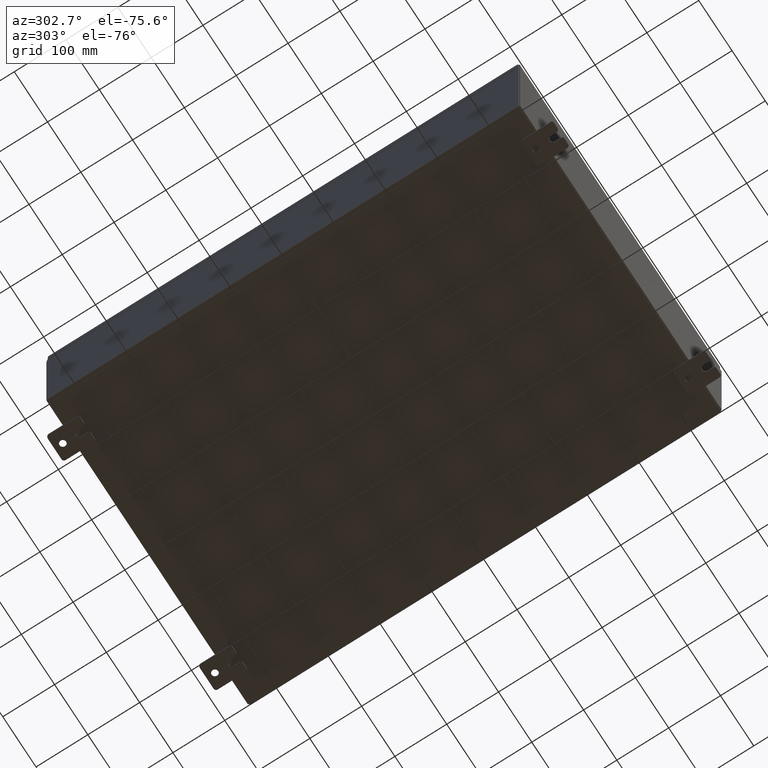
[diagram: clean part render]
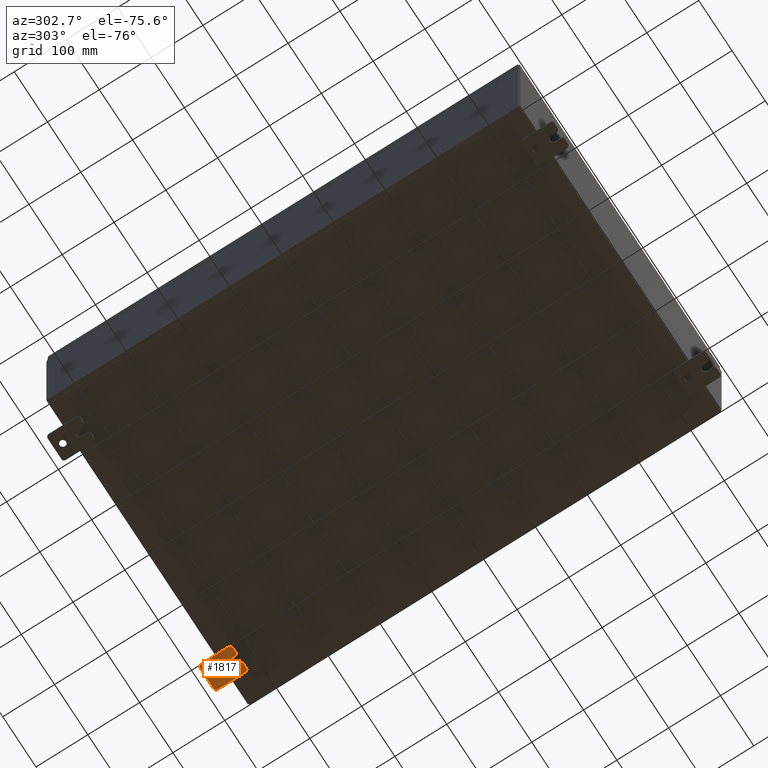
[diagram: same view with one face highlighted and labeled with its STEP entity id]
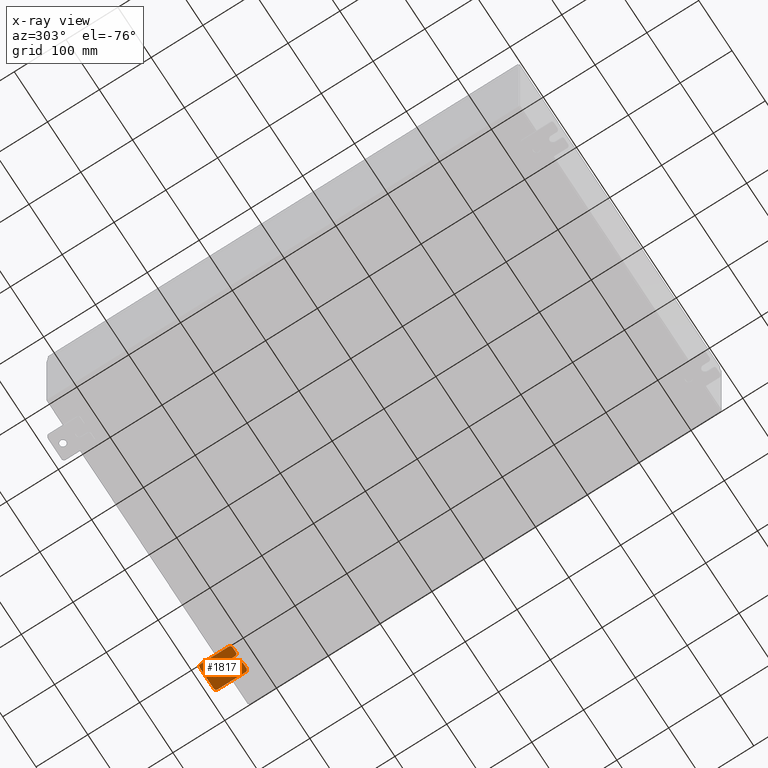
[diagram: x-ray of the same camera — body ghosted, the highlighted face saturated]
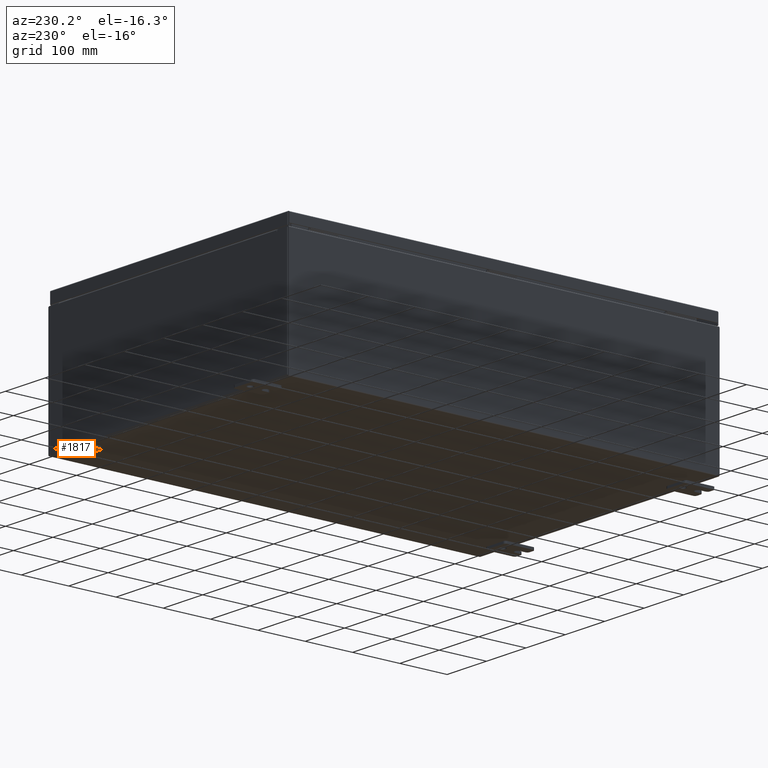
[diagram: same view with one face highlighted and labeled with its STEP entity id]
A machine part, auxiliary view. The second image highlights one B-rep face of the part: STEP entity #1817.
The next image is the same camera in x-ray: the body ghosted, the highlighted face saturated — about 0% of this face is hidden behind the body in this view.
A second angle (auxiliary view) of the same face is appended — the face is thin or edge-on in the first view.
In plain terms, the highlighted planar face has unit normal (0, 0, 1).
Its self-contained STEP definition (entity closure, byte-faithful):
#1572 = AXIS2_PLACEMENT_3D ( 'NONE', #21682, #56343, #26669 ) ;
#1817 = ADVANCED_FACE ( 'NONE', ( #14150, #24197 ), #57454, .F. ) ;
#2554 = DIRECTION ( 'NONE',  ( 0.0000000000000000000, 0.0000000000000000000, -1.000000000000000000 ) ) ;
#2759 = ORIENTED_EDGE ( 'NONE', *, *, #17984, .F. ) ;
#2913 = ORIENTED_EDGE ( 'NONE', *, *, #22399, .T. ) ;
#3124 = VERTEX_POINT ( 'NONE', #59370 ) ;
#3532 = EDGE_CURVE ( 'NONE', #18053, #22942, #44968, .T. ) ;
#3569 = AXIS2_PLACEMENT_3D ( 'NONE', #50252, #20573, #55243 ) ;
#4762 = CARTESIAN_POINT ( 'NONE',  ( -0.1879999999999997800, 0.0000000000000000000, 0.0000000000000000000 ) ) ;
#5684 = CARTESIAN_POINT ( 'NONE',  ( -0.1879999999999997800, -1.250000000000004700, -0.4400000000000002200 ) ) ;
#5997 = CARTESIAN_POINT ( 'NONE',  ( -0.1879999999999997800, 1.059999999999993400, -1.000000000000010000 ) ) ;
#6050 = CARTESIAN_POINT ( 'NONE',  ( -0.1880000000000001900, -0.6249999999999992200, -0.2499999999999993900 ) ) ;
#6592 = VECTOR ( 'NONE', #51560, 39.37007874015748100 ) ;
#7234 = EDGE_CURVE ( 'NONE', #51259, #7924, #46365, .T. ) ;
#7886 = VECTOR ( 'NONE', #20965, 39.37007874015748100 ) ;
#7924 = VERTEX_POINT ( 'NONE', #5997 ) ;
#9642 = VERTEX_POINT ( 'NONE', #15227 ) ;
#9829 = EDGE_CURVE ( 'NONE', #34634, #3124, #25261, .T. ) ;
#9855 = ORIENTED_EDGE ( 'NONE', *, *, #9829, .F. ) ;
#10464 = EDGE_CURVE ( 'NONE', #16222, #9642, #29805, .T. ) ;
#11246 = EDGE_CURVE ( 'NONE', #62405, #61473, #25928, .T. ) ;
#12113 = CARTESIAN_POINT ( 'NONE',  ( -0.1879999999999997800, 1.059999999999993600, -0.8100000000000089400 ) ) ;
#12541 = CARTESIAN_POINT ( 'NONE',  ( -0.1879999999999997800, 1.249999999999994700, -0.8100000000000092700 ) ) ;
#13964 = DIRECTION ( 'NONE',  ( 0.0000000000000000000, 1.639108796198553600E-015, 1.000000000000000000 ) ) ;
#14150 = FACE_BOUND ( 'NONE', #57389, .T. ) ;
#14245 = CARTESIAN_POINT ( 'NONE',  ( -0.1880000000000010000, 0.6249999999999992200, 0.2499999999999999200 ) ) ;
#15227 = CARTESIAN_POINT ( 'NONE',  ( -0.1879999999999997800, -1.060000000000001200, 0.9999999999999988900 ) ) ;
#15603 = ORIENTED_EDGE ( 'NONE', *, *, #40938, .T. ) ;
#15990 = CARTESIAN_POINT ( 'NONE',  ( -0.1879999999999997800, -1.250000000000002200, 0.9999999999999992200 ) ) ;
#16222 = VERTEX_POINT ( 'NONE', #49910 ) ;
#17081 = DIRECTION ( 'NONE',  ( 0.0000000000000000000, 0.0000000000000000000, -1.000000000000000000 ) ) ;
#17331 = CARTESIAN_POINT ( 'NONE',  ( -0.1879999999999997800, -1.060000000000002100, 0.4400000000000016700 ) ) ;
#17494 = CARTESIAN_POINT ( 'NONE',  ( -0.1879999999999997800, 1.249999999999997300, 0.8099999999999935000 ) ) ;
#17612 = VERTEX_POINT ( 'NONE', #47077 ) ;
#17839 = CARTESIAN_POINT ( 'NONE',  ( -0.1879999999999997800, -1.060000000000001600, 0.8099999999999978300 ) ) ;
#17984 = EDGE_CURVE ( 'NONE', #17612, #9642, #39863, .T. ) ;
#18030 = ORIENTED_EDGE ( 'NONE', *, *, #35286, .T. ) ;
#18053 = VERTEX_POINT ( 'NONE', #5684 ) ;
#18512 = LINE ( 'NONE', #6050, #33221 ) ;
#18625 = ORIENTED_EDGE ( 'NONE', *, *, #29932, .F. ) ;
#18661 = CIRCLE ( 'NONE', #32580, 0.2499999999999999200 ) ;
#18856 = EDGE_CURVE ( 'NONE', #51259, #22942, #56069, .T. ) ;
#18902 = CARTESIAN_POINT ( 'NONE',  ( -0.1880000000000010000, 0.6249999999999992200, -7.703811342100550500E-020 ) ) ;
#18917 = CARTESIAN_POINT ( 'NONE',  ( -0.1879999999999997800, -1.250000000000005600, -1.000000000000006200 ) ) ;
#19925 = CARTESIAN_POINT ( 'NONE',  ( -0.1879999999999997800, -1.250000000000002200, 0.9999999999999992200 ) ) ;
#20189 = AXIS2_PLACEMENT_3D ( 'NONE', #27084, #61853, #32061 ) ;
#20573 = DIRECTION ( 'NONE',  ( -1.000000000000000000, -0.0000000000000000000, 0.0000000000000000000 ) ) ;
#20637 = DIRECTION ( 'NONE',  ( 0.0000000000000000000, -1.639108796198553600E-015, -1.000000000000000000 ) ) ;
#20928 = CARTESIAN_POINT ( 'NONE',  ( -0.1880000000000010000, 0.6249999999999992200, -0.2499999999999999200 ) ) ;
#20965 = DIRECTION ( 'NONE',  ( 0.0000000000000000000, -1.639108796198553600E-015, -1.000000000000000000 ) ) ;
#21682 = CARTESIAN_POINT ( 'NONE',  ( -0.1880000000000001900, -0.6249999999999992200, 6.829619984160658000E-017 ) ) ;
#21899 = CARTESIAN_POINT ( 'NONE',  ( -0.1880000000000004700, -1.060000000000003400, -0.2499999999999994400 ) ) ;
#22249 = EDGE_CURVE ( 'NONE', #17612, #49250, #61392, .T. ) ;
#22326 = DIRECTION ( 'NONE',  ( 0.0000000000000000000, 0.0000000000000000000, -1.000000000000000000 ) ) ;
#22375 = CARTESIAN_POINT ( 'NONE',  ( -0.1880000000000001900, -0.6249999999999992200, 0.2500000000000005000 ) ) ;
#22399 = EDGE_CURVE ( 'NONE', #53849, #49183, #18661, .T. ) ;
#22468 = CIRCLE ( 'NONE', #29522, 0.2499999999999999200 ) ;
#22834 = DIRECTION ( 'NONE',  ( 0.0000000000000000000, 7.189073667537492800E-016, -1.000000000000000000 ) ) ;
#22942 = VERTEX_POINT ( 'NONE', #61096 ) ;
#23883 = DIRECTION ( 'NONE',  ( 0.0000000000000000000, 0.0000000000000000000, -1.000000000000000000 ) ) ;
#24197 = FACE_OUTER_BOUND ( 'NONE', #58831, .T. ) ;
#25261 = CIRCLE ( 'NONE', #1572, 0.2499999999999999200 ) ;
#25487 = CIRCLE ( 'NONE', #46612, 0.1900000000000011100 ) ;
#25928 = CIRCLE ( 'NONE', #51093, 0.1900000000000011400 ) ;
#26664 = CARTESIAN_POINT ( 'NONE',  ( -0.1879999999999997800, -1.060000000000004500, -1.000000000000006400 ) ) ;
#26669 = DIRECTION ( 'NONE',  ( -6.829619984160660000E-016, -1.000000000000000000, 0.0000000000000000000 ) ) ;
#27084 = CARTESIAN_POINT ( 'NONE',  ( -0.1879999999999997800, -1.060000000000004100, -0.8100000000000050500 ) ) ;
#28321 = DIRECTION ( 'NONE',  ( 1.000000000000000000, -0.0000000000000000000, -5.163192708025532000E-017 ) ) ;
#29085 = AXIS2_PLACEMENT_3D ( 'NONE', #17839, #52477, #22834 ) ;
#29522 = AXIS2_PLACEMENT_3D ( 'NONE', #18902, #53544, #23883 ) ;
#29805 = CIRCLE ( 'NONE', #29085, 0.1900000000000011100 ) ;
#29932 = EDGE_CURVE ( 'NONE', #16222, #61473, #34294, .T. ) ;
#30058 = VECTOR ( 'NONE', #51602, 39.37007874015748100 ) ;
#31768 = VECTOR ( 'NONE', #20637, 39.37007874015748100 ) ;
#32061 = DIRECTION ( 'NONE',  ( 0.0000000000000000000, 0.0000000000000000000, -1.000000000000000000 ) ) ;
#32326 = DIRECTION ( 'NONE',  ( -1.000000000000000000, -0.0000000000000000000, 0.0000000000000000000 ) ) ;
#32553 = DIRECTION ( 'NONE',  ( -0.0000000000000000000, 0.0000000000000000000, -1.000000000000000000 ) ) ;
#32580 = AXIS2_PLACEMENT_3D ( 'NONE', #58031, #28321, #63142 ) ;
#32990 = LINE ( 'NONE', #61658, #6592 ) ;
#33221 = VECTOR ( 'NONE', #45733, 39.37007874015748100 ) ;
#33322 = EDGE_CURVE ( 'NONE', #49183, #53849, #22468, .T. ) ;
#33854 = CARTESIAN_POINT ( 'NONE',  ( -0.1879999999999997800, 1.249999999999994200, -1.000000000000010400 ) ) ;
#34294 = LINE ( 'NONE', #15990, #7886 ) ;
#34634 = VERTEX_POINT ( 'NONE', #22375 ) ;
#34814 = ORIENTED_EDGE ( 'NONE', *, *, #55019, .F. ) ;
#35061 = EDGE_CURVE ( 'NONE', #3124, #48764, #18512, .T. ) ;
#35286 = EDGE_CURVE ( 'NONE', #56455, #7924, #25487, .T. ) ;
#35896 = ORIENTED_EDGE ( 'NONE', *, *, #7234, .F. ) ;
#36080 = DIRECTION ( 'NONE',  ( 1.000000000000000000, 0.0000000000000000000, -0.0000000000000000000 ) ) ;
#36551 = LINE ( 'NONE', #33854, #51258 ) ;
#37672 = ORIENTED_EDGE ( 'NONE', *, *, #10464, .T. ) ;
#39863 = LINE ( 'NONE', #44713, #51437 ) ;
#40938 = EDGE_CURVE ( 'NONE', #18053, #48764, #62453, .T. ) ;
#43249 = ORIENTED_EDGE ( 'NONE', *, *, #62213, .F. ) ;
#44713 = CARTESIAN_POINT ( 'NONE',  ( -0.1879999999999997800, 1.249999999999997600, 0.9999999999999951200 ) ) ;
#44968 = LINE ( 'NONE', #19925, #31768 ) ;
#45733 = DIRECTION ( 'NONE',  ( -6.556435184794182400E-016, -1.000000000000000000, -1.639108796198545600E-016 ) ) ;
#46365 = LINE ( 'NONE', #18917, #30058 ) ;
#46387 = ORIENTED_EDGE ( 'NONE', *, *, #11246, .T. ) ;
#46612 = AXIS2_PLACEMENT_3D ( 'NONE', #12113, #46779, #17081 ) ;
#46779 = DIRECTION ( 'NONE',  ( -1.000000000000000000, -0.0000000000000000000, 0.0000000000000000000 ) ) ;
#47077 = CARTESIAN_POINT ( 'NONE',  ( -0.1879999999999997800, 1.059999999999996500, 0.9999999999999953400 ) ) ;
#48764 = VERTEX_POINT ( 'NONE', #21899 ) ;
#49183 = VERTEX_POINT ( 'NONE', #14245 ) ;
#49250 = VERTEX_POINT ( 'NONE', #17494 ) ;
#49720 = DIRECTION ( 'NONE',  ( 0.0000000000000000000, -1.000000000000000000, 1.639108796198558100E-015 ) ) ;
#49910 = CARTESIAN_POINT ( 'NONE',  ( -0.1879999999999997800, -1.250000000000002400, 0.8099999999999980500 ) ) ;
#50252 = CARTESIAN_POINT ( 'NONE',  ( -0.1879999999999997800, -1.060000000000003400, -0.4400000000000005000 ) ) ;
#51093 = AXIS2_PLACEMENT_3D ( 'NONE', #17331, #51973, #22326 ) ;
#51258 = VECTOR ( 'NONE', #13964, 39.37007874015748100 ) ;
#51259 = VERTEX_POINT ( 'NONE', #26664 ) ;
#51437 = VECTOR ( 'NONE', #49720, 39.37007874015748100 ) ;
#51560 = DIRECTION ( 'NONE',  ( 6.556435184794182400E-016, 1.000000000000000000, 0.0000000000000000000 ) ) ;
#51602 = DIRECTION ( 'NONE',  ( 0.0000000000000000000, 1.000000000000000000, -1.639108796198558100E-015 ) ) ;
#51973 = DIRECTION ( 'NONE',  ( -1.000000000000000000, -0.0000000000000000000, 0.0000000000000000000 ) ) ;
#52477 = DIRECTION ( 'NONE',  ( -1.000000000000000000, -0.0000000000000000000, 0.0000000000000000000 ) ) ;
#53120 = ORIENTED_EDGE ( 'NONE', *, *, #18856, .T. ) ;
#53544 = DIRECTION ( 'NONE',  ( 1.000000000000000000, -0.0000000000000000000, -5.163192708025532000E-017 ) ) ;
#53849 = VERTEX_POINT ( 'NONE', #20928 ) ;
#54722 = CARTESIAN_POINT ( 'NONE',  ( -0.1879999999999997800, -1.250000000000003100, 0.4400000000000020000 ) ) ;
#55019 = EDGE_CURVE ( 'NONE', #62405, #34634, #32990, .T. ) ;
#55243 = DIRECTION ( 'NONE',  ( 0.0000000000000000000, 0.0000000000000000000, -1.000000000000000000 ) ) ;
#56069 = CIRCLE ( 'NONE', #20189, 0.1900000000000011100 ) ;
#56136 = ORIENTED_EDGE ( 'NONE', *, *, #33322, .T. ) ;
#56343 = DIRECTION ( 'NONE',  ( -1.000000000000000000, 6.523827964459549700E-016, 5.163192708025532000E-017 ) ) ;
#56455 = VERTEX_POINT ( 'NONE', #12541 ) ;
#57054 = AXIS2_PLACEMENT_3D ( 'NONE', #62124, #32326, #2554 ) ;
#57389 = EDGE_LOOP ( 'NONE', ( #2913, #56136 ) ) ;
#57454 = PLANE ( 'NONE',  #62024 ) ;
#57673 = ORIENTED_EDGE ( 'NONE', *, *, #35061, .F. ) ;
#58031 = CARTESIAN_POINT ( 'NONE',  ( -0.1880000000000010000, 0.6249999999999992200, -7.703811342100550500E-020 ) ) ;
#58831 = EDGE_LOOP ( 'NONE', ( #18625, #37672, #2759, #60338, #43249, #18030, #35896, #53120, #61873, #15603, #57673, #9855, #34814, #46387 ) ) ;
#59370 = CARTESIAN_POINT ( 'NONE',  ( -0.1880000000000001900, -0.6249999999999992200, -0.2499999999999998600 ) ) ;
#60135 = CARTESIAN_POINT ( 'NONE',  ( -0.1880000000000004700, -1.060000000000002100, 0.2500000000000005000 ) ) ;
#60338 = ORIENTED_EDGE ( 'NONE', *, *, #22249, .T. ) ;
#61096 = CARTESIAN_POINT ( 'NONE',  ( -0.1879999999999997800, -1.250000000000005300, -0.8100000000000047200 ) ) ;
#61392 = CIRCLE ( 'NONE', #57054, 0.1900000000000011100 ) ;
#61473 = VERTEX_POINT ( 'NONE', #54722 ) ;
#61658 = CARTESIAN_POINT ( 'NONE',  ( -0.1880000000000005800, -1.250000000000003800, 0.2500000000000005000 ) ) ;
#61853 = DIRECTION ( 'NONE',  ( -1.000000000000000000, -0.0000000000000000000, 0.0000000000000000000 ) ) ;
#61873 = ORIENTED_EDGE ( 'NONE', *, *, #3532, .F. ) ;
#62024 = AXIS2_PLACEMENT_3D ( 'NONE', #4762, #36080, #32553 ) ;
#62124 = CARTESIAN_POINT ( 'NONE',  ( -0.1879999999999997800, 1.059999999999996300, 0.8099999999999938400 ) ) ;
#62213 = EDGE_CURVE ( 'NONE', #56455, #49250, #36551, .T. ) ;
#62405 = VERTEX_POINT ( 'NONE', #60135 ) ;
#62453 = CIRCLE ( 'NONE', #3569, 0.1900000000000011100 ) ;
#63142 = DIRECTION ( 'NONE',  ( 0.0000000000000000000, 0.0000000000000000000, -1.000000000000000000 ) ) ;